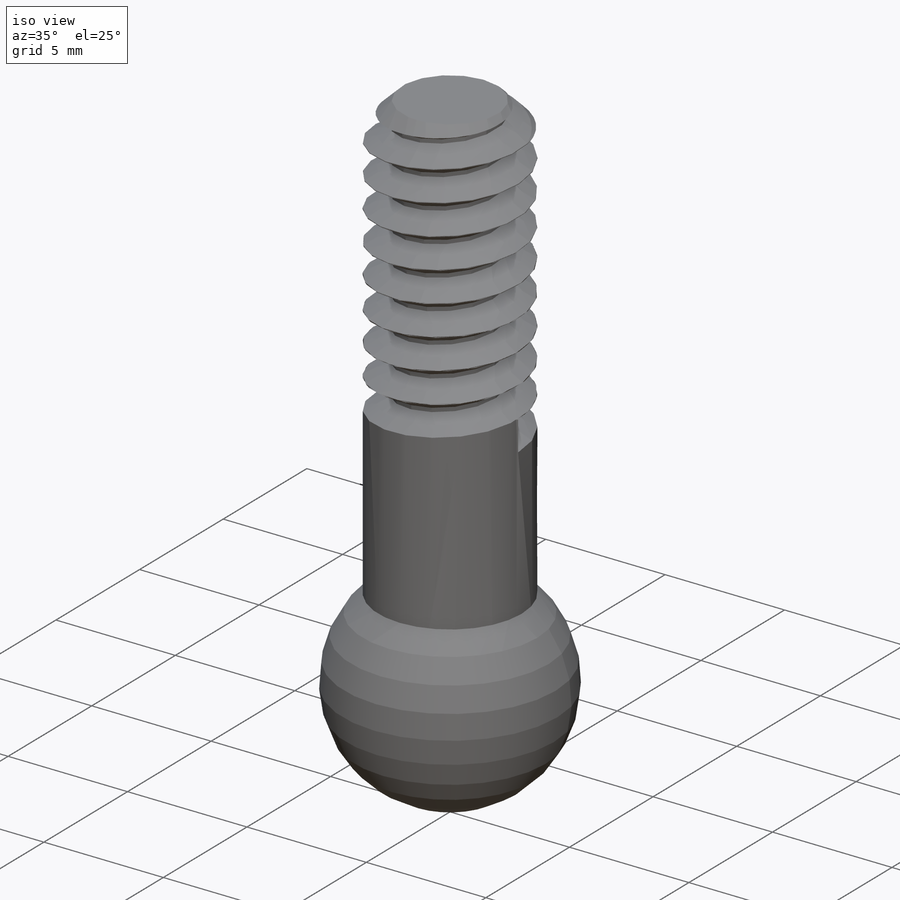
[diagram: iso view]
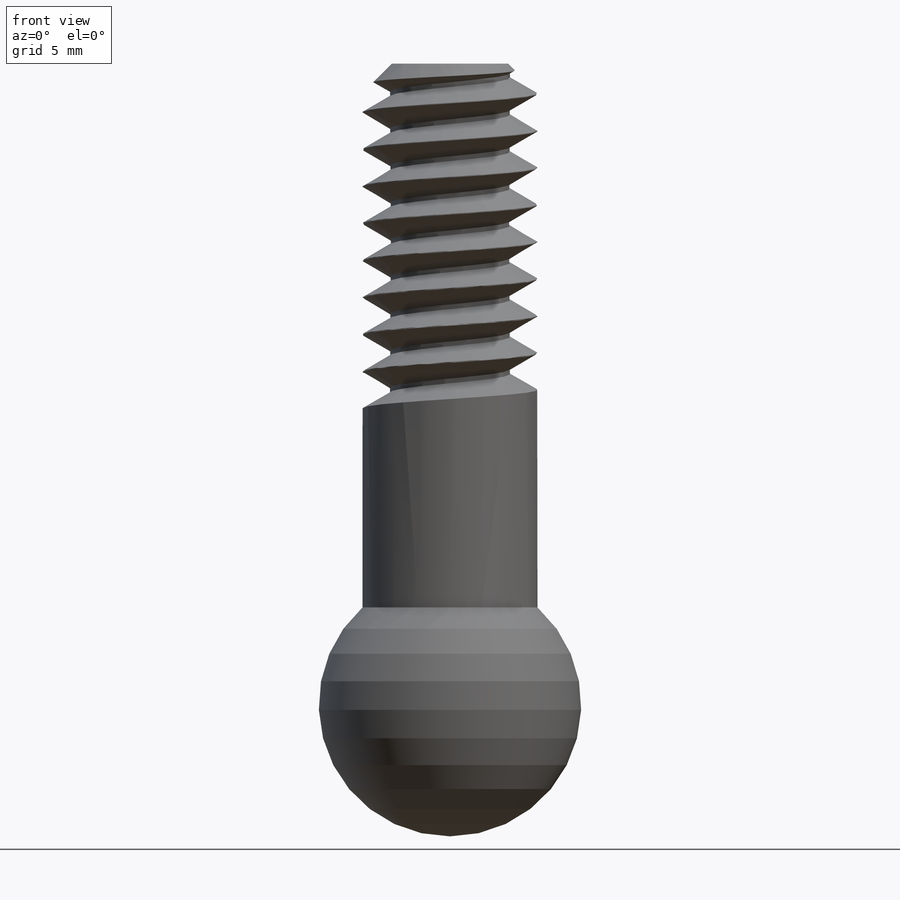
[diagram: front view]
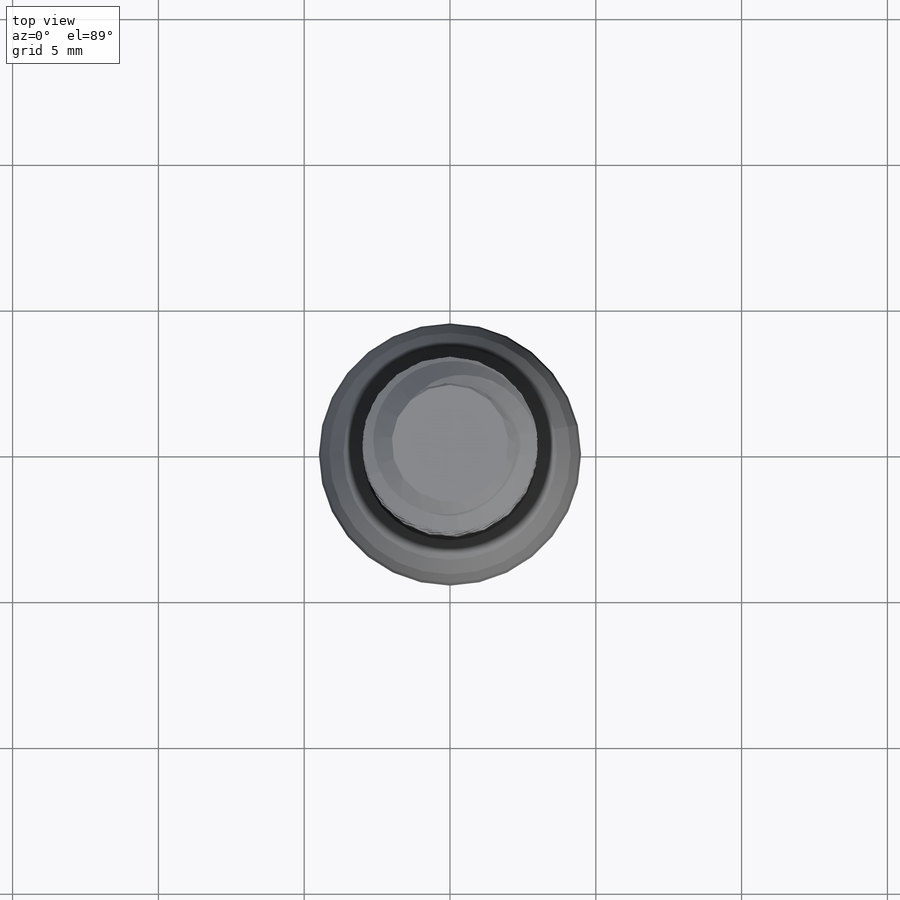
[diagram: top view]
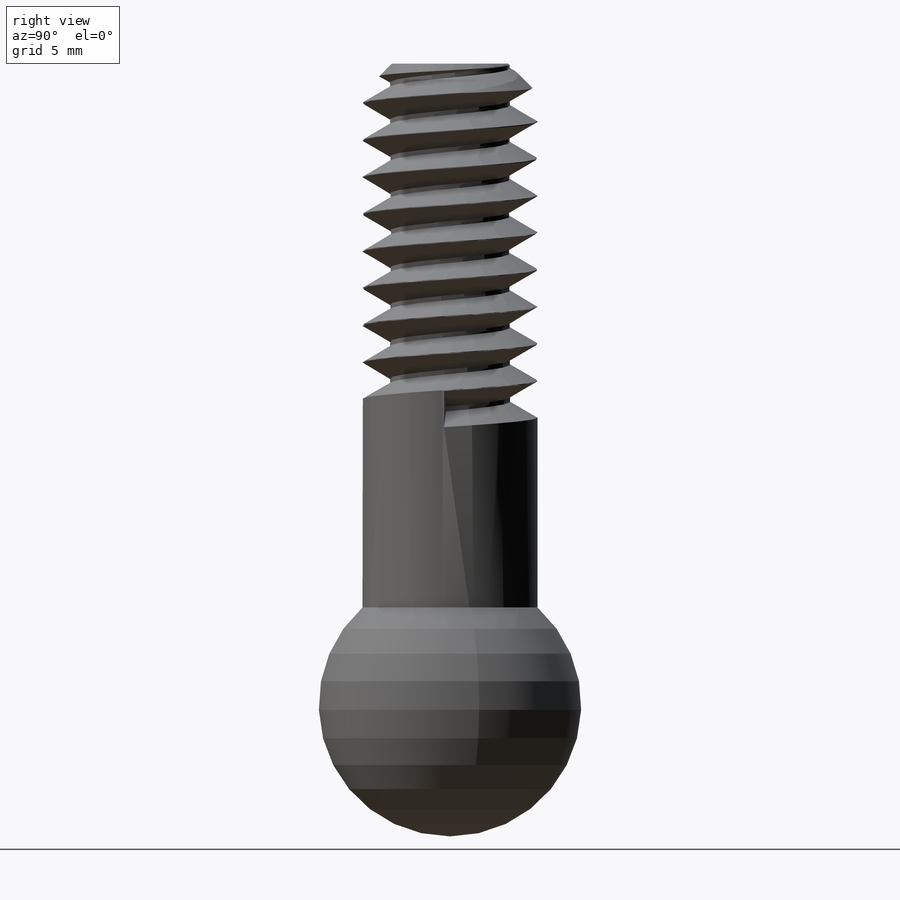
[diagram: right view]
SOLIDWORKS PART (.sldprt)
format: sldprt  version: not decoded by parser v0  size: 383,488 bytes
history: native  units: mm
features: plane x5, sketch x4, material x1, revolve x1, extrude x1, chamfer x1, helix x1, sweep x1 (+8 scaffold rows collapsed)
feature tree (23):
  scaffold x8  (default folders/planes/origin — collapsed)
  material  "Материал <не указан>"
  plane  "Спереди"
  plane  "Сверху"
  plane  "Справа"
  sketch  "Эскиз2"  dims[D1=9.0mm]
  revolve  "Повернуть1"  Angle=360deg
  plane  "Плоскость1"  Offset=22mm
  sketch  "Эскиз3"  dims[D1=6.0mm]
  extrude  "Бобышка-Вытянуть1"  [1 undecoded]
  chamfer  "Фаска1"  Distance=1mm Angle=45deg
  plane  "Плоскость2"  Offset=5mm
  sketch  "Эскиз4"  dims[D1=6.0mm]
  helix  "Спираль1"  Pitch=17mm
  sketch  "Эскиз5"  dims[c1.D1=1.27mm c1.D2=~1.146129mm c2.D2=60.0deg c2.D3=~1.212818mm c3.D3=60.0deg c3.D4=~1.11125mm c3.D1=1.26mm]
  sweep  "Вырез-По траектории2"
decode coverage: 7 of 9 modeling features carry decoded parameters
note: ~ marks probable driven/reference dimensions
note: 1 parameter value undecoded
note: suppression state not decoded; provenance and decode notes live in map.json
